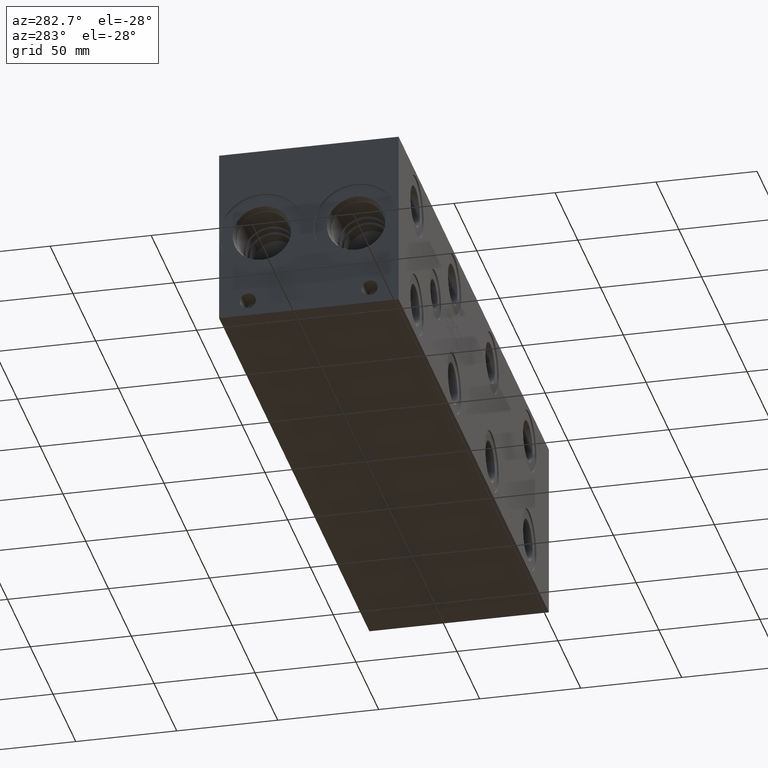
[diagram: clean part render]
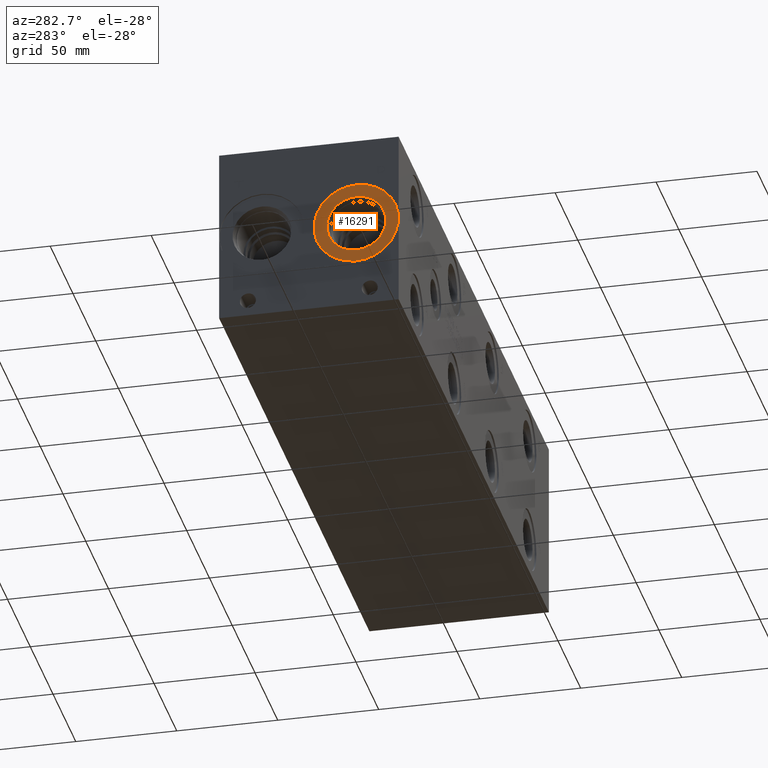
[diagram: same view with one face highlighted and labeled with its STEP entity id]
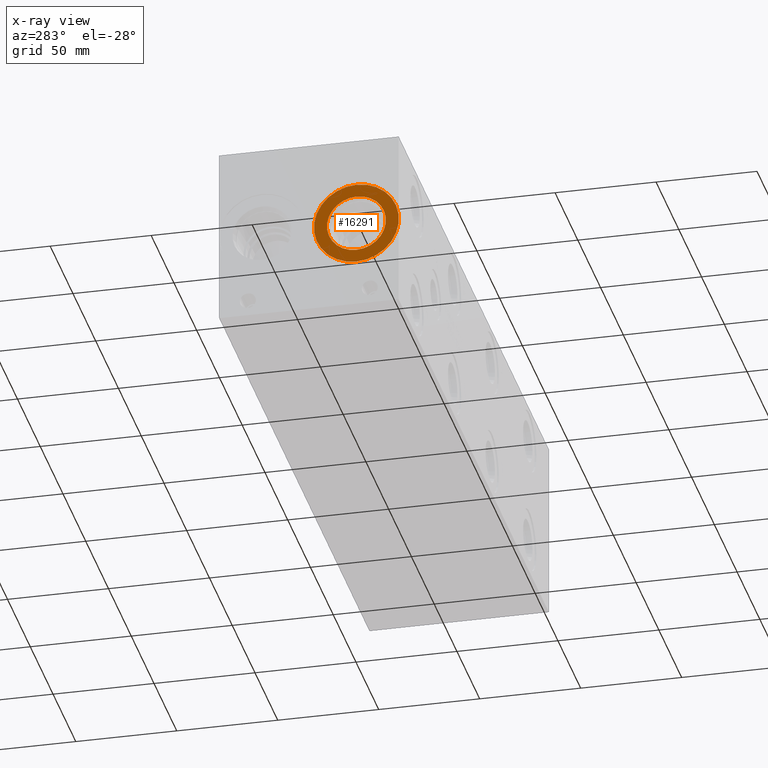
[diagram: x-ray of the same camera — body ghosted, the highlighted face saturated]
A machine part, auxiliary view. The second image highlights one B-rep face of the part: STEP entity #16291.
The next image is the same camera in x-ray: the body ghosted, the highlighted face saturated — about 0% of this face is hidden behind the body in this view.
In plain terms, the highlighted planar face has unit normal (1, 0, 0).
Its self-contained STEP definition (entity closure, byte-faithful):
#364=CIRCLE('',#17097,21.0185);
#365=CIRCLE('',#17098,21.0185);
#366=CIRCLE('',#17100,14.5923);
#367=CIRCLE('',#17101,14.5923);
#797=FACE_BOUND('',#3051,.T.);
#2106=FACE_OUTER_BOUND('',#3050,.T.);
#3050=EDGE_LOOP('',(#13554,#13555));
#3051=EDGE_LOOP('',(#13556,#13557));
#7372=VERTEX_POINT('',#27551);
#7373=VERTEX_POINT('',#27553);
#7374=VERTEX_POINT('',#27557);
#7375=VERTEX_POINT('',#27558);
#9536=EDGE_CURVE('',#7372,#7373,#364,.T.);
#9537=EDGE_CURVE('',#7373,#7372,#365,.T.);
#9538=EDGE_CURVE('',#7374,#7375,#366,.T.);
#9539=EDGE_CURVE('',#7375,#7374,#367,.T.);
#13554=ORIENTED_EDGE('',*,*,#9537,.F.);
#13555=ORIENTED_EDGE('',*,*,#9536,.F.);
#13556=ORIENTED_EDGE('',*,*,#9538,.T.);
#13557=ORIENTED_EDGE('',*,*,#9539,.T.);
#15040=PLANE('',#17099);
#16291=ADVANCED_FACE('',(#2106,#797),#15040,.F.);
#17097=AXIS2_PLACEMENT_3D('',#27554,#20063,#20064);
#17098=AXIS2_PLACEMENT_3D('',#27555,#20065,#20066);
#17099=AXIS2_PLACEMENT_3D('',#27556,#20067,#20068);
#17100=AXIS2_PLACEMENT_3D('',#27559,#20069,#20070);
#17101=AXIS2_PLACEMENT_3D('',#27560,#20071,#20072);
#20063=DIRECTION('center_axis',(1.,0.,0.));
#20064=DIRECTION('ref_axis',(0.,0.,-1.));
#20065=DIRECTION('center_axis',(1.,0.,0.));
#20066=DIRECTION('ref_axis',(0.,0.,-1.));
#20067=DIRECTION('center_axis',(1.,0.,0.));
#20068=DIRECTION('ref_axis',(0.,0.,-1.));
#20069=DIRECTION('center_axis',(1.,0.,0.));
#20070=DIRECTION('ref_axis',(0.,0.,-1.));
#20071=DIRECTION('center_axis',(1.,0.,0.));
#20072=DIRECTION('ref_axis',(0.,0.,-1.));
#27551=CARTESIAN_POINT('',(0.7874,21.082,23.4315));
#27553=CARTESIAN_POINT('',(0.7874,21.082,65.4685));
#27554=CARTESIAN_POINT('Origin',(0.7874,21.082,44.45));
#27555=CARTESIAN_POINT('Origin',(0.7874,21.082,44.45));
#27556=CARTESIAN_POINT('Origin',(0.7874,21.082,59.0423));
#27557=CARTESIAN_POINT('',(0.7874,21.082,59.0423));
#27558=CARTESIAN_POINT('',(0.787399999999999,21.082,29.8577));
#27559=CARTESIAN_POINT('Origin',(0.7874,21.082,44.45));
#27560=CARTESIAN_POINT('Origin',(0.7874,21.082,44.45));